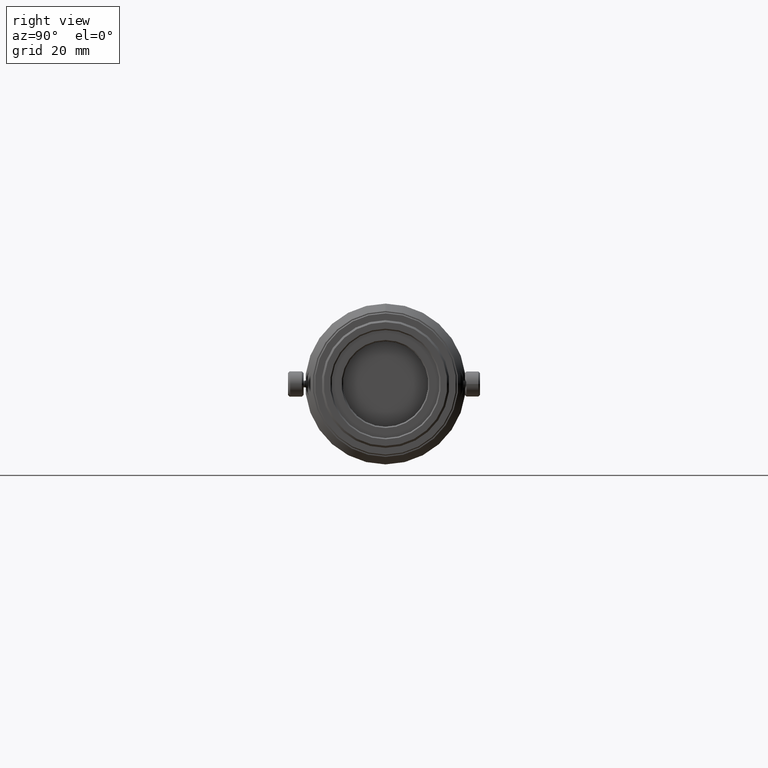
[diagram: clean part render]
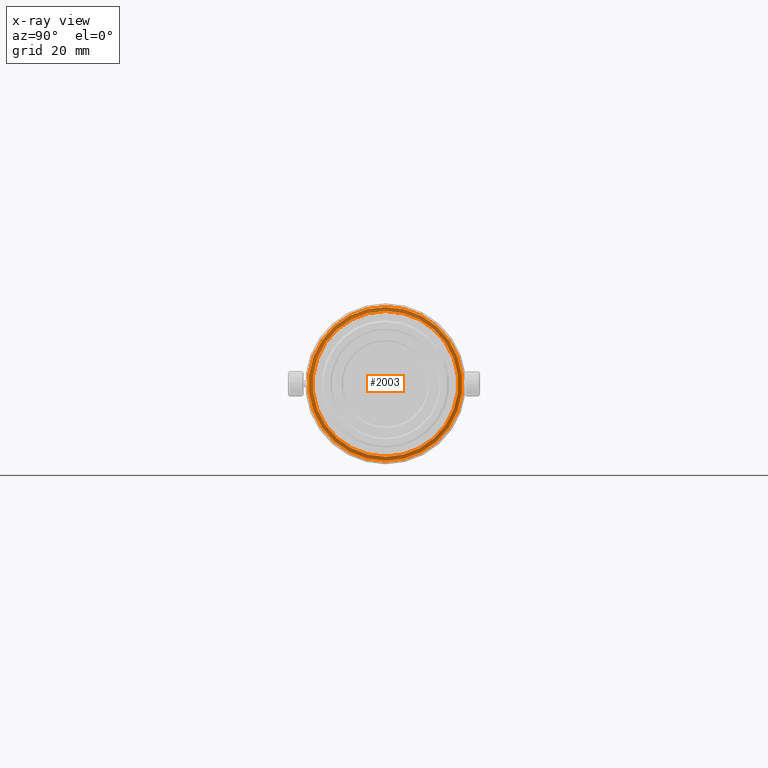
[diagram: x-ray — body ghosted, one internal face saturated and labeled with its STEP entity id]
A machine part, right view, then the same camera in x-ray: the body is ghosted and one INTERNAL B-rep face — a face not visible from any outside direction — is saturated and labeled: STEP entity #2003.
In plain terms, the highlighted planar face has unit normal (-1, 0, -0).
Its self-contained STEP definition (entity closure, byte-faithful):
#155 = ORIENTED_EDGE ( 'NONE', *, *, #445, .T. ) ;
#261 = AXIS2_PLACEMENT_3D ( 'NONE', #3233, #3532, #1406 ) ;
#343 = CIRCLE ( 'NONE', #2297, 15.29381588161427707 ) ;
#445 = EDGE_CURVE ( 'NONE', #4104, #2355, #2235, .T. ) ;
#451 = CARTESIAN_POINT ( 'NONE',  ( -92.52599999999986835, -1.716966097389170877E-13, -14.49999999999960387 ) ) ;
#481 = FACE_OUTER_BOUND ( 'NONE', #3242, .T. ) ;
#630 = CARTESIAN_POINT ( 'NONE',  ( -92.52599999999991098, -1.734723475976807094E-13, 15.29381588161427707 ) ) ;
#720 = FACE_BOUND ( 'NONE', #4333, .T. ) ;
#872 = CARTESIAN_POINT ( 'NONE',  ( -92.52599999999991098, -1.715871488630724584E-13, -15.29381588161427707 ) ) ;
#899 = EDGE_CURVE ( 'NONE', #3444, #2602, #1924, .T. ) ;
#1071 = PLANE ( 'NONE',  #2374 ) ;
#1107 = EDGE_CURVE ( 'NONE', #2355, #4104, #2210, .T. ) ;
#1170 = ORIENTED_EDGE ( 'NONE', *, *, #899, .F. ) ;
#1397 = DIRECTION ( 'NONE',  ( 0.0000000000000000000, 0.0000000000000000000, 1.000000000000000000 ) ) ;
#1406 = DIRECTION ( 'NONE',  ( 0.0000000000000000000, 0.0000000000000000000, 1.000000000000000000 ) ) ;
#1448 = DIRECTION ( 'NONE',  ( 0.0000000000000000000, 0.0000000000000000000, 1.000000000000000000 ) ) ;
#1565 = CARTESIAN_POINT ( 'NONE',  ( -92.52599999999988256, 14.49999999999942979, 0.0000000000000000000 ) ) ;
#1882 = ORIENTED_EDGE ( 'NONE', *, *, #2133, .F. ) ;
#1894 = CARTESIAN_POINT ( 'NONE',  ( -92.52599999999986835, -1.734723475976807094E-13, 14.49999999999960387 ) ) ;
#1924 = CIRCLE ( 'NONE', #4096, 15.29381588161427707 ) ;
#2003 = ADVANCED_FACE ( 'NONE', ( #481, #720 ), #1071, .F. ) ;
#2133 = EDGE_CURVE ( 'NONE', #2602, #3444, #343, .T. ) ;
#2154 = CARTESIAN_POINT ( 'NONE',  ( -92.52599999999986835, -1.734723475976807094E-13, 0.0000000000000000000 ) ) ;
#2210 = CIRCLE ( 'NONE', #261, 14.49999999999960387 ) ;
#2235 = CIRCLE ( 'NONE', #2621, 14.49999999999960387 ) ;
#2297 = AXIS2_PLACEMENT_3D ( 'NONE', #2414, #3394, #1448 ) ;
#2355 = VERTEX_POINT ( 'NONE', #451 ) ;
#2374 = AXIS2_PLACEMENT_3D ( 'NONE', #1565, #3003, #2644 ) ;
#2414 = CARTESIAN_POINT ( 'NONE',  ( -92.52599999999991098, -1.734723475976807094E-13, 0.0000000000000000000 ) ) ;
#2562 = DIRECTION ( 'NONE',  ( -1.000000000000000000, -0.0000000000000000000, -0.0000000000000000000 ) ) ;
#2602 = VERTEX_POINT ( 'NONE', #630 ) ;
#2621 = AXIS2_PLACEMENT_3D ( 'NONE', #2154, #2562, #3273 ) ;
#2644 = DIRECTION ( 'NONE',  ( -0.0000000000000000000, 0.0000000000000000000, 1.000000000000000000 ) ) ;
#2799 = CARTESIAN_POINT ( 'NONE',  ( -92.52599999999991098, -1.734723475976807094E-13, 0.0000000000000000000 ) ) ;
#2899 = ORIENTED_EDGE ( 'NONE', *, *, #1107, .T. ) ;
#3003 = DIRECTION ( 'NONE',  ( -1.000000000000000000, 0.0000000000000000000, -0.0000000000000000000 ) ) ;
#3233 = CARTESIAN_POINT ( 'NONE',  ( -92.52599999999986835, -1.734723475976807094E-13, 0.0000000000000000000 ) ) ;
#3242 = EDGE_LOOP ( 'NONE', ( #1882, #1170 ) ) ;
#3273 = DIRECTION ( 'NONE',  ( 0.0000000000000000000, 0.0000000000000000000, 1.000000000000000000 ) ) ;
#3394 = DIRECTION ( 'NONE',  ( -1.000000000000000000, -0.0000000000000000000, -0.0000000000000000000 ) ) ;
#3444 = VERTEX_POINT ( 'NONE', #872 ) ;
#3532 = DIRECTION ( 'NONE',  ( -1.000000000000000000, -0.0000000000000000000, -0.0000000000000000000 ) ) ;
#4096 = AXIS2_PLACEMENT_3D ( 'NONE', #2799, #4227, #1397 ) ;
#4104 = VERTEX_POINT ( 'NONE', #1894 ) ;
#4227 = DIRECTION ( 'NONE',  ( -1.000000000000000000, -0.0000000000000000000, -0.0000000000000000000 ) ) ;
#4333 = EDGE_LOOP ( 'NONE', ( #155, #2899 ) ) ;